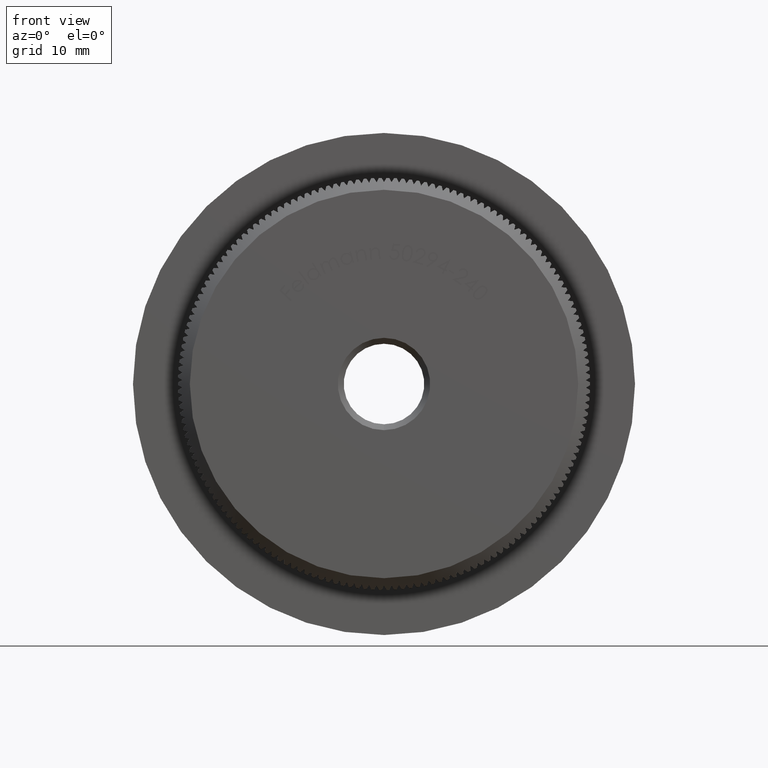
[diagram: clean part render]
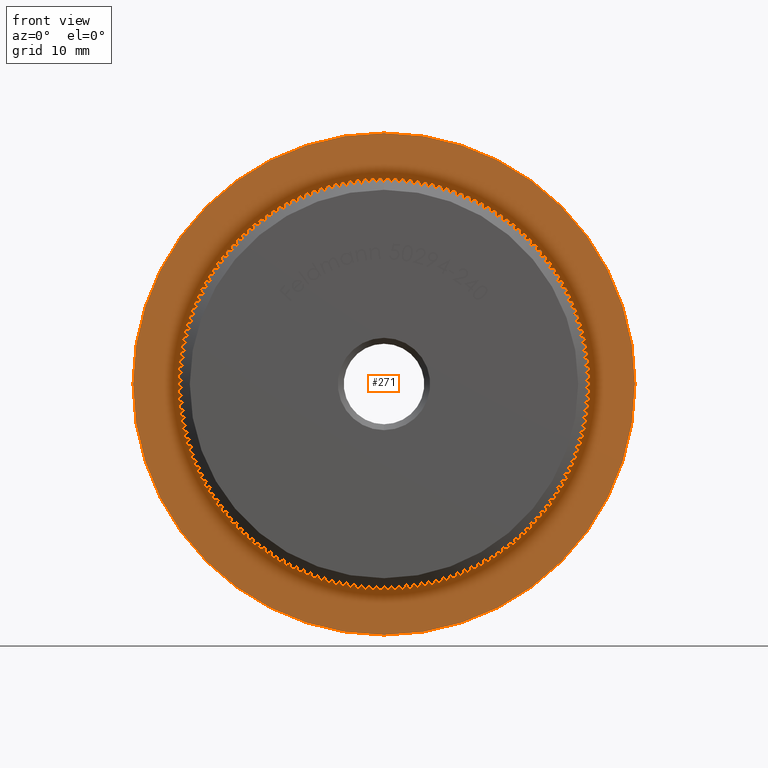
[diagram: same view with one face highlighted and labeled with its STEP entity id]
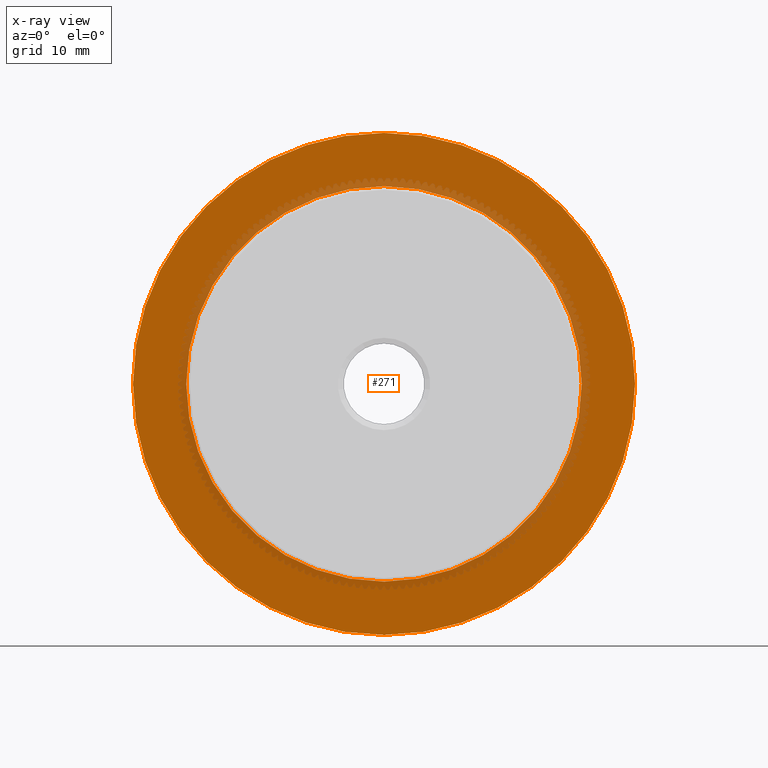
[diagram: x-ray of the same camera — body ghosted, the highlighted face saturated]
A machine part, front view. The second image highlights one B-rep face of the part: STEP entity #271.
The next image is the same camera in x-ray: the body ghosted, the highlighted face saturated — about 13% of this face is hidden behind the body in this view.
In plain terms, the highlighted planar face has unit normal (0, -1, -0).
Its self-contained STEP definition (entity closure, byte-faithful):
#271 = ADVANCED_FACE ( 'NONE', ( #29437, #1948 ), #10138, .T. ) ;
#631 = AXIS2_PLACEMENT_3D ( 'NONE', #17366, #24538, #10039 ) ;
#1254 = EDGE_LOOP ( 'NONE', ( #30544, #21235 ) ) ;
#1948 = FACE_BOUND ( 'NONE', #18045, .T. ) ;
#2083 = DIRECTION ( 'NONE',  ( -0.0000000000000000000, -1.000000000000000000, -0.0000000000000000000 ) ) ;
#2451 = CARTESIAN_POINT ( 'NONE',  ( 2.596251214192388800E-015, 8.000000000000000000, 21.19999999999999900 ) ) ;
#4024 = CIRCLE ( 'NONE', #16271, 16.69999999999999900 ) ;
#5636 = EDGE_CURVE ( 'NONE', #22692, #13100, #20023, .T. ) ;
#6107 = CARTESIAN_POINT ( 'NONE',  ( 0.0000000000000000000, 8.000000000000000000, -21.19999999999999900 ) ) ;
#7189 = DIRECTION ( 'NONE',  ( -0.0000000000000000000, -1.000000000000000000, -0.0000000000000000000 ) ) ;
#9295 = AXIS2_PLACEMENT_3D ( 'NONE', #14460, #2083, #21110 ) ;
#10039 = DIRECTION ( 'NONE',  ( 0.0000000000000000000, 0.0000000000000000000, -1.000000000000000000 ) ) ;
#10138 = PLANE ( 'NONE',  #631 ) ;
#12242 = VERTEX_POINT ( 'NONE', #19415 ) ;
#13100 = VERTEX_POINT ( 'NONE', #2451 ) ;
#14460 = CARTESIAN_POINT ( 'NONE',  ( 0.0000000000000000000, 8.000000000000000000, 0.0000000000000000000 ) ) ;
#14478 = CARTESIAN_POINT ( 'NONE',  ( 2.088022792546237000E-015, 8.000000000000000000, 16.69999999999999900 ) ) ;
#15545 = DIRECTION ( 'NONE',  ( 0.0000000000000000000, 0.0000000000000000000, -1.000000000000000000 ) ) ;
#16034 = DIRECTION ( 'NONE',  ( -0.0000000000000000000, -1.000000000000000000, -0.0000000000000000000 ) ) ;
#16271 = AXIS2_PLACEMENT_3D ( 'NONE', #22892, #16034, #22993 ) ;
#16878 = EDGE_CURVE ( 'NONE', #13100, #22692, #20714, .T. ) ;
#17366 = CARTESIAN_POINT ( 'NONE',  ( 16.69999999999999900, 8.000000000000000000, 0.0000000000000000000 ) ) ;
#18045 = EDGE_LOOP ( 'NONE', ( #27725, #25710 ) ) ;
#18408 = AXIS2_PLACEMENT_3D ( 'NONE', #27451, #25298, #15545 ) ;
#19334 = CARTESIAN_POINT ( 'NONE',  ( 0.0000000000000000000, 8.000000000000000000, 0.0000000000000000000 ) ) ;
#19415 = CARTESIAN_POINT ( 'NONE',  ( 0.0000000000000000000, 8.000000000000000000, -16.69999999999999900 ) ) ;
#20023 = CIRCLE ( 'NONE', #9295, 21.19999999999999900 ) ;
#20714 = CIRCLE ( 'NONE', #18408, 21.19999999999999900 ) ;
#20732 = VERTEX_POINT ( 'NONE', #14478 ) ;
#20931 = CIRCLE ( 'NONE', #24835, 16.69999999999999900 ) ;
#21105 = EDGE_CURVE ( 'NONE', #20732, #12242, #20931, .T. ) ;
#21110 = DIRECTION ( 'NONE',  ( 0.0000000000000000000, 0.0000000000000000000, -1.000000000000000000 ) ) ;
#21235 = ORIENTED_EDGE ( 'NONE', *, *, #16878, .T. ) ;
#22692 = VERTEX_POINT ( 'NONE', #6107 ) ;
#22892 = CARTESIAN_POINT ( 'NONE',  ( 0.0000000000000000000, 8.000000000000000000, 0.0000000000000000000 ) ) ;
#22993 = DIRECTION ( 'NONE',  ( 0.0000000000000000000, 0.0000000000000000000, -1.000000000000000000 ) ) ;
#24538 = DIRECTION ( 'NONE',  ( 0.0000000000000000000, -1.000000000000000000, -0.0000000000000000000 ) ) ;
#24835 = AXIS2_PLACEMENT_3D ( 'NONE', #19334, #7189, #28765 ) ;
#25298 = DIRECTION ( 'NONE',  ( -0.0000000000000000000, -1.000000000000000000, -0.0000000000000000000 ) ) ;
#25710 = ORIENTED_EDGE ( 'NONE', *, *, #21105, .F. ) ;
#26334 = EDGE_CURVE ( 'NONE', #12242, #20732, #4024, .T. ) ;
#27451 = CARTESIAN_POINT ( 'NONE',  ( 0.0000000000000000000, 8.000000000000000000, 0.0000000000000000000 ) ) ;
#27725 = ORIENTED_EDGE ( 'NONE', *, *, #26334, .F. ) ;
#28765 = DIRECTION ( 'NONE',  ( 0.0000000000000000000, 0.0000000000000000000, -1.000000000000000000 ) ) ;
#29437 = FACE_OUTER_BOUND ( 'NONE', #1254, .T. ) ;
#30544 = ORIENTED_EDGE ( 'NONE', *, *, #5636, .T. ) ;